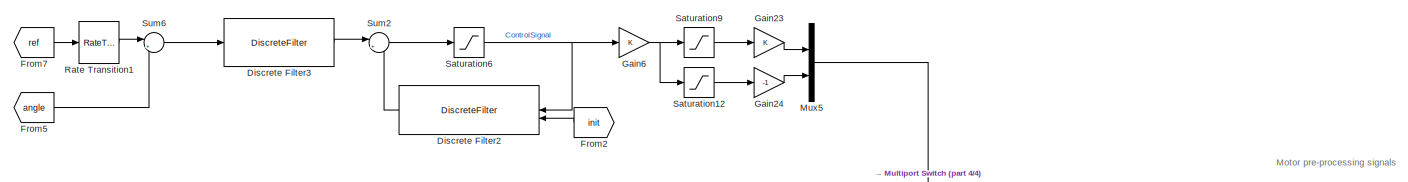
[diagram: root canvas - part 1/4, top center region]
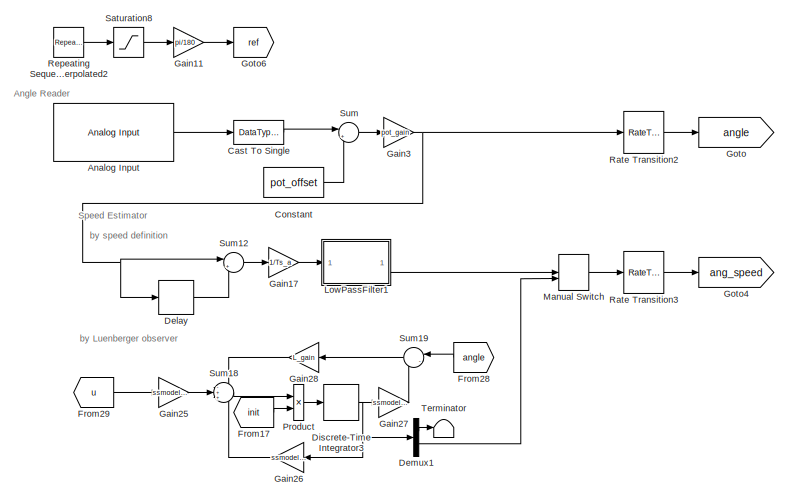
[diagram: root canvas - part 2/4, middle left region]
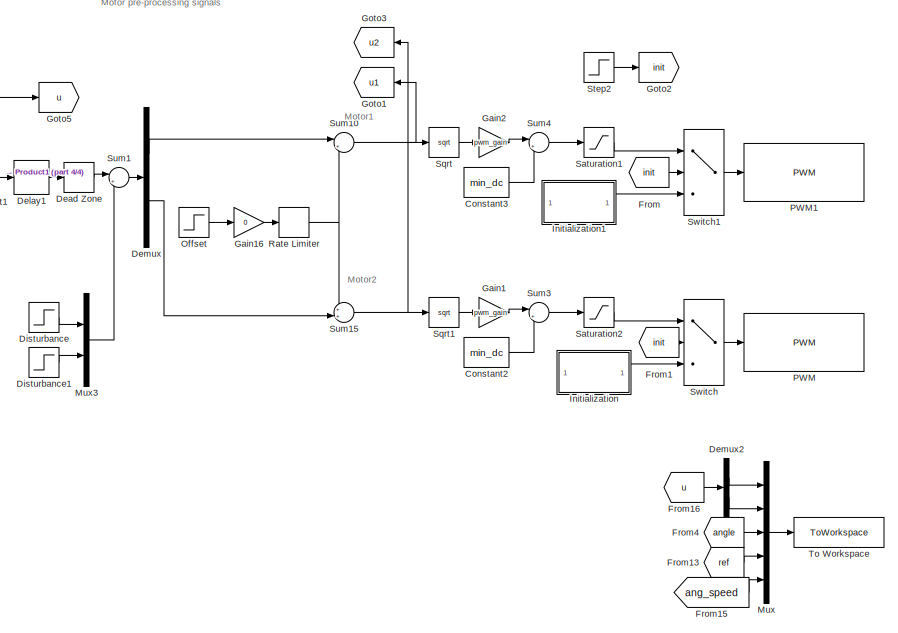
[diagram: root canvas - part 3/4, middle right region]
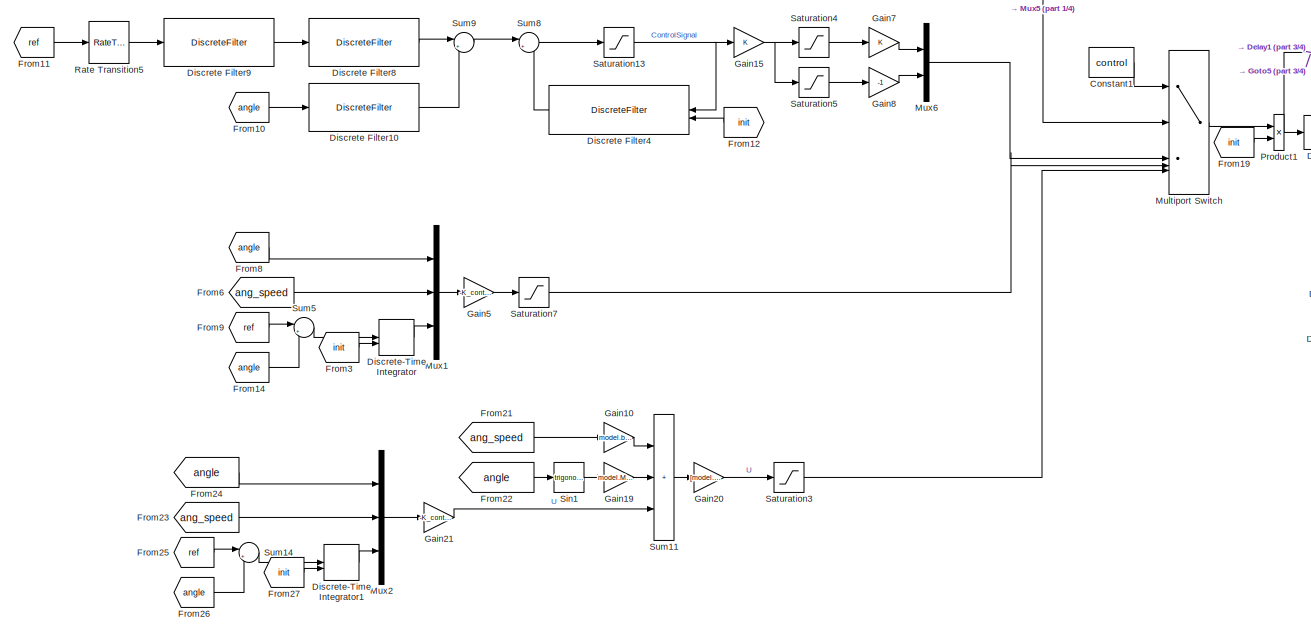
[diagram: root canvas - part 4/4, central region]
MODEL slx_61c2918c2355
KIND model
CONFIG AbsTol = auto
CONFIG EnableMultiTasking = on
CONFIG FixedStep = auto
CONFIG MaxStep = auto
CONFIG MinStep = auto
CONFIG RelTol = 1e-3
CONFIG SampleTimeConstraint = Unconstrained
CONFIG SolverName = FixedStepAuto
CONFIG StartTime = 0.0
CONFIG StopTime = 60
BLOCK [Reference] Analog Input  REF=arduinolib/Analog Input
  SourceBlock = arduinolib/Analog Input
  SourceType = Arduino Analog Input
BLOCK [DataTypeConversion] Cast To Single
  OutDataTypeStr = single
  RndMeth = Floor
  SaturateOnIntegerOverflow = off
BLOCK [Constant] Constant
  OutDataTypeStr = single
  SampleTime = Ts_a
  Value = pot_offset
BLOCK [Constant] Constant1
  SampleTime = Ts
  Value = control
BLOCK [Constant] Constant2
  OutDataTypeStr = single
  SampleTime = Ts
  Value = min_dc
BLOCK [Constant] Constant3
  OutDataTypeStr = single
  SampleTime = Ts
  Value = min_dc
BLOCK [DeadZone] Dead Zone
  Commented = through
  LowerValue = 0
  UpperValue = 0.1
BLOCK [Delay] Delay
  DelayLength = 1
  InputPortMap = u0
BLOCK [Delay] Delay1
  Commented = through
  InputPortMap = u0
BLOCK [Demux] Demux
  Outputs = 2
BLOCK [Demux] Demux1
  Outputs = 2
BLOCK [Demux] Demux2
  Outputs = 2
BLOCK [DiscreteFilter] Discrete Filter10
  Denominator = 1
  InputPortMap = u0
  Numerator = R
BLOCK [DiscreteFilter] Discrete Filter2
  Denominator = 1
  ExternalReset = Rising
  InputPortMap = u0,r7
  NameLocation = top
  Numerator = [1 0 0]-conv([1 s1_meq],[1 -1])
BLOCK [DiscreteFilter] Discrete Filter3
  Denominator = 1
  InputPortMap = u0
  Numerator = [r0_meq(1) r1_meq(1) r2_meq(1)]
BLOCK [DiscreteFilter] Discrete Filter4
  Denominator = 1
  ExternalReset = Rising
  InputPortMap = u0,r7
  NameLocation = top
  Numerator = [1 0 0]-conv([1 s1_meq],[1 -1])
BLOCK [DiscreteFilter] Discrete Filter8
  Denominator = 1
  InputPortMap = u0
  Numerator = T
BLOCK [DiscreteFilter] Discrete Filter9
  Denominator = den_mf_track
  InputPortMap = u0
  Numerator = num_mf_track
BLOCK [DiscreteIntegrator] Discrete-Time Integrator
  ExternalReset = rising
  ICPrevOutput = DiscIntNeverNeededParam
  ICPrevScaledInput = DiscIntNeverNeededParam
  InitialConditionSetting = Auto
  SampleTime = -1
BLOCK [DiscreteIntegrator] Discrete-Time Integrator1
  ExternalReset = rising
  ICPrevOutput = DiscIntNeverNeededParam
  ICPrevScaledInput = DiscIntNeverNeededParam
  InitialConditionSetting = Auto
  SampleTime = -1
BLOCK [DiscreteIntegrator] Discrete-Time Integrator3
  ICPrevOutput = DiscIntNeverNeededParam
  ICPrevScaledInput = DiscIntNeverNeededParam
  InitialConditionSetting = Auto
  SampleTime = -1
BLOCK [Step] Disturbance
  After = 0.04
  SampleTime = Ts
  Time = 5+15
BLOCK [Step] Disturbance1
  After = 0.04
  SampleTime = Ts
  Time = 20+15
BLOCK [From] From
  GotoTag = init
BLOCK [From] From1
  GotoTag = init
BLOCK [From] From10
  GotoTag = angle
BLOCK [From] From11
  GotoTag = ref
BLOCK [From] From12
  GotoTag = init
  NameLocation = top
BLOCK [From] From13
  GotoTag = ref
BLOCK [From] From14
  GotoTag = angle
BLOCK [From] From15
  GotoTag = ang_speed
BLOCK [From] From16
  GotoTag = u
BLOCK [From] From17
  GotoTag = init
BLOCK [From] From19
  GotoTag = init
BLOCK [From] From2
  GotoTag = init
  NameLocation = top
BLOCK [From] From21
  GotoTag = ang_speed
BLOCK [From] From22
  GotoTag = angle
BLOCK [From] From23
  GotoTag = ang_speed
BLOCK [From] From24
  GotoTag = angle
BLOCK [From] From25
  GotoTag = ref
BLOCK [From] From26
  GotoTag = angle
BLOCK [From] From27
  GotoTag = init
BLOCK [From] From28
  GotoTag = angle
  NameLocation = top
BLOCK [From] From29
  GotoTag = u
  NameLocation = top
BLOCK [From] From3
  GotoTag = init
BLOCK [From] From4
  GotoTag = angle
BLOCK [From] From5
  GotoTag = angle
BLOCK [From] From6
  GotoTag = ang_speed
BLOCK [From] From7
  GotoTag = ref
BLOCK [From] From8
  GotoTag = angle
BLOCK [From] From9
  GotoTag = ref
BLOCK [Gain] Gain1
  Gain = pwm_gain
  OutDataTypeStr = Inherit: Inherit via back propagation
  ParamDataTypeStr = single
BLOCK [Gain] Gain10
  Gain = model.b/model.J
BLOCK [Gain] Gain11
  Gain = pi/180
BLOCK [Gain] Gain15
BLOCK [Gain] Gain16
  Gain = 0
BLOCK [Gain] Gain17
  Gain = 1/Ts_a
BLOCK [Gain] Gain19
  Gain = model.M*model.g*model.x/model.J
BLOCK [Gain] Gain2
  Gain = pwm_gain
  OutDataTypeStr = single
BLOCK [Gain] Gain20
  Gain = [model.J/model.gain -model.J/model.gain]
BLOCK [Gain] Gain21
  Gain = -K_controller2
  Multiplication = Matrix(K*u)
BLOCK [Gain] Gain23
BLOCK [Gain] Gain24
  Gain = -1
BLOCK [Gain] Gain25
  Gain = ssmodel_B
  Multiplication = Matrix(K*u)
  OutDataTypeStr = single
BLOCK [Gain] Gain26
  Gain = ssmodel_A
  Multiplication = Matrix(K*u)
  NameLocation = top
BLOCK [Gain] Gain27
  Gain = ssmodel_C
  Multiplication = Matrix(K*u)
BLOCK [Gain] Gain28
  Gain = L_gain
  Multiplication = Matrix(K*u)
  NameLocation = top
BLOCK [Gain] Gain3
  Gain = pot_gain
  OutDataTypeStr = single
BLOCK [Gain] Gain5
  Gain = -K_controller
  Multiplication = Matrix(K*u)
BLOCK [Gain] Gain6
BLOCK [Gain] Gain7
BLOCK [Gain] Gain8
  Gain = -1
BLOCK [Goto] Goto
  GotoTag = angle
BLOCK [Goto] Goto1
  GotoTag = u1
  NameLocation = top
BLOCK [Goto] Goto2
  GotoTag = init
BLOCK [Goto] Goto3
  GotoTag = u2
  NameLocation = top
BLOCK [Goto] Goto4
  GotoTag = ang_speed
BLOCK [Goto] Goto5
  GotoTag = u
BLOCK [Goto] Goto6
  GotoTag = ref
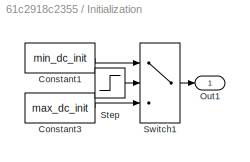
BLOCK [SubSystem] Initialization
BLOCK [Constant] Initialization/Constant1
  OutDataTypeStr = single
  SampleTime = Ts
  Value = min_dc_init
BLOCK [Constant] Initialization/Constant3
  OutDataTypeStr = single
  SampleTime = Ts
  Value = max_dc_init
BLOCK [Outport] Initialization/Out1
BLOCK [Step] Initialization/Step
  OutDataTypeStr = single
  SampleTime = Ts
  Time = 2
BLOCK [Switch] Initialization/Switch1
  Criteria = u2 > Threshold
  InputSameDT = off
  SaturateOnIntegerOverflow = off
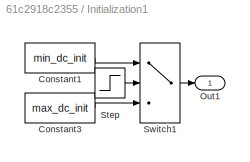
BLOCK [SubSystem] Initialization1
BLOCK [Constant] Initialization1/Constant1
  OutDataTypeStr = single
  SampleTime = Ts
  Value = min_dc_init
BLOCK [Constant] Initialization1/Constant3
  OutDataTypeStr = single
  SampleTime = Ts
  Value = max_dc_init
BLOCK [Outport] Initialization1/Out1
BLOCK [Step] Initialization1/Step
  OutDataTypeStr = single
  SampleTime = Ts
  Time = 2
BLOCK [Switch] Initialization1/Switch1
  Criteria = u2 > Threshold
  InputSameDT = off
  SaturateOnIntegerOverflow = off
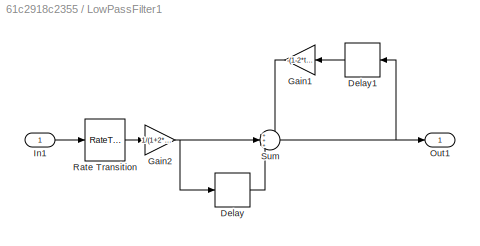
BLOCK [SubSystem] LowPassFilter1
  Commented = through
BLOCK [Delay] LowPassFilter1/Delay
  DelayLength = 1
  InputPortMap = u0
BLOCK [Delay] LowPassFilter1/Delay1
  DelayLength = 1
  InputPortMap = u0
  NameLocation = top
BLOCK [Gain] LowPassFilter1/Gain1
  Gain = -(1-2*tau/Ts)*1/(1+2*tau/Ts)
  NameLocation = top
  OutDataTypeStr = single
BLOCK [Gain] LowPassFilter1/Gain2
  Gain = 1/(1+2*tau/Ts)
  OutDataTypeStr = single
BLOCK [Inport] LowPassFilter1/In1
BLOCK [Outport] LowPassFilter1/Out1
BLOCK [RateTransition] LowPassFilter1/Rate Transition
  OutPortSampleTime = Ts
BLOCK [Sum] LowPassFilter1/Sum
  Inputs = +++
BLOCK [ManualSwitch] Manual Switch
  CurrentSetting = 0
BLOCK [MultiPortSwitch] Multiport Switch
  InputSameDT = off
  Inputs = 4
  SaturateOnIntegerOverflow = off
BLOCK [Mux] Mux
  DisplayOption = bar
  Inputs = 5
BLOCK [Mux] Mux1
  DisplayOption = bar
  Inputs = 3
BLOCK [Mux] Mux2
  DisplayOption = bar
  Inputs = 3
BLOCK [Mux] Mux3
  DisplayOption = bar
  Inputs = 2
BLOCK [Mux] Mux5
  DisplayOption = bar
  Inputs = 2
BLOCK [Mux] Mux6
  DisplayOption = bar
  Inputs = 2
BLOCK [Step] Offset
  After = 0.01
  OutDataTypeStr = single
  SampleTime = Ts
  Time = 15
BLOCK [Reference] PWM  REF=arduinolib/PWM
  SourceBlock = arduinolib/PWM
  SourceType = Arduino PWM
BLOCK [Reference] PWM1  REF=arduinolib/PWM
  SourceBlock = arduinolib/PWM
  SourceType = Arduino PWM
BLOCK [Product] Product
BLOCK [Product] Product1
BLOCK [RateLimiter] Rate Limiter
  SampleTimeMode = inherited
BLOCK [RateTransition] Rate Transition1
BLOCK [RateTransition] Rate Transition2
  OutPortSampleTime = Ts
BLOCK [RateTransition] Rate Transition3
  OutPortSampleTime = Ts
BLOCK [RateTransition] Rate Transition5
BLOCK [Reference] Repeating Sequence Interpolated2  REF=simulink/Sources/Repeating
Sequence
Interpolated
  SourceBlock = simulink/Sources/Repeating\nSequence\nInterpolated
  SourceType = Repeating Sequence Interpolated
BLOCK [Saturate] Saturation1
  LowerLimit = min_dc
  OutDataTypeStr = single
  UpperLimit = max_dc
BLOCK [Saturate] Saturation12
  LowerLimit = -1
  UpperLimit = 0
BLOCK [Saturate] Saturation13
  LowerLimit = -1
  UpperLimit = 1
BLOCK [Saturate] Saturation2
  LowerLimit = min_dc
  UpperLimit = max_dc
BLOCK [Saturate] Saturation3
  LowerLimit = 0
  UpperLimit = 1
BLOCK [Saturate] Saturation4
  LowerLimit = 0
  UpperLimit = 1
BLOCK [Saturate] Saturation5
  LowerLimit = -1
  UpperLimit = 0
BLOCK [Saturate] Saturation6
  LowerLimit = -1
  UpperLimit = 1
BLOCK [Saturate] Saturation7
  LowerLimit = 0
  UpperLimit = 1
BLOCK [Saturate] Saturation8
  LowerLimit = -140
  UpperLimit = 140
BLOCK [Saturate] Saturation9
  LowerLimit = 0
  UpperLimit = 1
BLOCK [Trigonometry] Sin1
BLOCK [Sqrt] Sqrt
  OutputSignalType = real
BLOCK [Sqrt] Sqrt1
  OutputSignalType = real
BLOCK [Step] Step2
  OutDataTypeStr = single
  SampleTime = Ts
  Time = 15
BLOCK [Sum] Sum
  Inputs = |+-
BLOCK [Sum] Sum1
  Inputs = |++
BLOCK [Sum] Sum10
  Inputs = |++
BLOCK [Sum] Sum11
  IconShape = rectangular
  Inputs = +++
BLOCK [Sum] Sum12
  Inputs = |+-
BLOCK [Sum] Sum14
  Inputs = |+-
BLOCK [Sum] Sum15
  Inputs = ++|
BLOCK [Sum] Sum18
  Inputs = -++
BLOCK [Sum] Sum19
  Inputs = |-+
  NameLocation = top
BLOCK [Sum] Sum2
  Inputs = |++
  OutDataTypeStr = single
BLOCK [Sum] Sum3
  Inputs = |++
  OutDataTypeStr = Inherit: Same as first input
BLOCK [Sum] Sum4
  Inputs = |++
  OutDataTypeStr = Inherit: Same as first input
BLOCK [Sum] Sum5
  Inputs = |+-
BLOCK [Sum] Sum6
  Inputs = |+-
BLOCK [Sum] Sum8
  Inputs = |++
  OutDataTypeStr = single
BLOCK [Sum] Sum9
  Inputs = |+-
  OutDataTypeStr = Inherit: Inherit via back propagation
BLOCK [Switch] Switch
  Criteria = u2 > Threshold
  InputSameDT = off
  SaturateOnIntegerOverflow = off
BLOCK [Switch] Switch1
  Criteria = u2 > Threshold
  InputSameDT = off
  SaturateOnIntegerOverflow = off
BLOCK [Terminator] Terminator
BLOCK [ToWorkspace] To Workspace
  FixptAsFi = on
  MaxDataPoints = inf
  SampleTime = Ts
  SaveFormat = Structure With Time
  VariableName = Ensaio1
ANNOTATION (root): Angle Reader
ANNOTATION (root): Motor pre-processing signals
ANNOTATION (root): Motor1
ANNOTATION (root): Motor2
ANNOTATION (root): Speed Estimator
ANNOTATION (root): by Luenberger observer
ANNOTATION (root): by speed definition
LINE Analog Input:1 -> Cast To Single:1
LINE Cast To Single:1 -> Sum:1
LINE Constant1:1 -> Multiport Switch:1
LINE Constant2:1 -> Sum3:2
LINE Constant3:1 -> Sum4:2
LINE Constant:1 -> Sum:2
LINE Dead Zone:1 -> Sum1:1
LINE Delay1:1 -> Dead Zone:1
LINE Delay:1 -> Sum12:2
LINE Demux1:1 -> Terminator:1
LINE Demux1:2 -> Manual Switch:2
LINE Demux2:1 -> Mux:1
LINE Demux2:2 -> Mux:2
LINE Demux:1 -> Sum10:1
LINE Demux:2 -> Sum15:2
LINE Discrete Filter10:1 -> Sum9:2
LINE Discrete Filter2:1 -> Sum2:2
LINE Discrete Filter3:1 -> Sum2:1
LINE Discrete Filter4:1 -> Sum8:2
LINE Discrete Filter8:1 -> Sum9:1
LINE Discrete Filter9:1 -> Discrete Filter8:1
LINE Discrete-Time Integrator1:1 -> Mux2:3
NET Discrete-Time Integrator3:1 -> Demux1:1, Gain26:1, Gain27:1
LINE Discrete-Time Integrator:1 -> Mux1:3
LINE Disturbance1:1 -> Mux3:2
LINE Disturbance:1 -> Mux3:1
LINE From10:1 -> Discrete Filter10:1
LINE From11:1 -> Rate Transition5:1
LINE From12:1 -> Discrete Filter4:2
LINE From13:1 -> Mux:4
LINE From14:1 -> Sum5:2
LINE From15:1 -> Mux:5
LINE From16:1 -> Demux2:1
LINE From17:1 -> Product:2
LINE From19:1 -> Product1:2
LINE From1:1 -> Switch:2
LINE From21:1 -> Gain10:1
LINE From22:1 -> Sin1:1
LINE From23:1 -> Mux2:2
LINE From24:1 -> Mux2:1
LINE From25:1 -> Sum14:1
LINE From26:1 -> Sum14:2
LINE From27:1 -> Discrete-Time Integrator1:2
LINE From28:1 -> Sum19:1
LINE From29:1 -> Gain25:1
LINE From2:1 -> Discrete Filter2:2
LINE From3:1 -> Discrete-Time Integrator:2
LINE From4:1 -> Mux:3
LINE From5:1 -> Sum6:2
LINE From6:1 -> Mux1:2
LINE From7:1 -> Rate Transition1:1
LINE From8:1 -> Mux1:1
LINE From9:1 -> Sum5:1
LINE From:1 -> Switch1:2
LINE Gain10:1 -> Sum11:1
LINE Gain11:1 -> Goto6:1
NET Gain15:1 -> Saturation4:1, Saturation5:1
LINE Gain16:1 -> Rate Limiter:1
LINE Gain17:1 -> LowPassFilter1:1
LINE Gain19:1 -> Sum11:2
LINE Gain1:1 -> Sum3:1
LINE Gain20:1 -> Saturation3:1
LINE Gain21:1 -> Sum11:3
LINE Gain23:1 -> Mux5:1
LINE Gain24:1 -> Mux5:2
LINE Gain25:1 -> Sum18:2
LINE Gain26:1 -> Sum18:3
LINE Gain27:1 -> Sum19:2
LINE Gain28:1 -> Sum18:1
LINE Gain2:1 -> Sum4:1
NET Gain3:1 -> Delay:1, Rate Transition2:1, Sum12:1
LINE Gain5:1 -> Saturation7:1
NET Gain6:1 -> Saturation12:1, Saturation9:1
LINE Gain7:1 -> Mux6:1
LINE Gain8:1 -> Mux6:2
LINE Initialization/Constant1:1 -> Initialization/Switch1:1
LINE Initialization/Constant3:1 -> Initialization/Switch1:3
LINE Initialization/Step:1 -> Initialization/Switch1:2
LINE Initialization/Switch1:1 -> Initialization/Out1:1
LINE Initialization1/Constant1:1 -> Initialization1/Switch1:1
LINE Initialization1/Constant3:1 -> Initialization1/Switch1:3
LINE Initialization1/Step:1 -> Initialization1/Switch1:2
LINE Initialization1/Switch1:1 -> Initialization1/Out1:1
LINE Initialization1:1 -> Switch1:3
LINE Initialization:1 -> Switch:3
LINE LowPassFilter1/Delay1:1 -> LowPassFilter1/Gain1:1
LINE LowPassFilter1/Delay:1 -> LowPassFilter1/Sum:3
LINE LowPassFilter1/Gain1:1 -> LowPassFilter1/Sum:1
NET LowPassFilter1/Gain2:1 -> LowPassFilter1/Delay:1, LowPassFilter1/Sum:2
LINE LowPassFilter1/In1:1 -> LowPassFilter1/Rate Transition:1
LINE LowPassFilter1/Rate Transition:1 -> LowPassFilter1/Gain2:1
NET LowPassFilter1/Sum:1 -> LowPassFilter1/Delay1:1, LowPassFilter1/Out1:1
LINE LowPassFilter1:1 -> Manual Switch:1
LINE Manual Switch:1 -> Rate Transition3:1
LINE Multiport Switch:1 -> Product1:1
LINE Mux1:1 -> Gain5:1
LINE Mux2:1 -> Gain21:1
LINE Mux3:1 -> Sum1:2
LINE Mux5:1 -> Multiport Switch:2
LINE Mux6:1 -> Multiport Switch:3
LINE Mux:1 -> To Workspace:1
LINE Offset:1 -> Gain16:1
NET Product1:1 -> Delay1:1, Goto5:1
LINE Product:1 -> Discrete-Time Integrator3:1
NET Rate Limiter:1 -> Sum10:2, Sum15:1
LINE Rate Transition1:1 -> Sum6:1
LINE Rate Transition2:1 -> Goto:1
LINE Rate Transition3:1 -> Goto4:1
LINE Rate Transition5:1 -> Discrete Filter9:1
LINE Repeating Sequence Interpolated2:1 -> Saturation8:1
LINE Saturation12:1 -> Gain24:1
NET Saturation13:1 -> Discrete Filter4:1, Gain15:1
LINE Saturation1:1 -> Switch1:1
LINE Saturation2:1 -> Switch:1
LINE Saturation3:1 -> Multiport Switch:5
LINE Saturation4:1 -> Gain7:1
LINE Saturation5:1 -> Gain8:1
NET Saturation6:1 -> Discrete Filter2:1, Gain6:1
LINE Saturation7:1 -> Multiport Switch:4
LINE Saturation8:1 -> Gain11:1
LINE Saturation9:1 -> Gain23:1
LINE Sin1:1 -> Gain19:1
LINE Sqrt1:1 -> Gain1:1
LINE Sqrt:1 -> Gain2:1
LINE Step2:1 -> Goto2:1
NET Sum10:1 -> Goto1:1, Sqrt:1
LINE Sum11:1 -> Gain20:1
LINE Sum12:1 -> Gain17:1
LINE Sum14:1 -> Discrete-Time Integrator1:1
NET Sum15:1 -> Goto3:1, Sqrt1:1
LINE Sum18:1 -> Product:1
LINE Sum19:1 -> Gain28:1
LINE Sum1:1 -> Demux:1
LINE Sum2:1 -> Saturation6:1
LINE Sum3:1 -> Saturation2:1
LINE Sum4:1 -> Saturation1:1
LINE Sum5:1 -> Discrete-Time Integrator:1
LINE Sum6:1 -> Discrete Filter3:1
LINE Sum8:1 -> Saturation13:1
LINE Sum9:1 -> Sum8:1
LINE Sum:1 -> Gain3:1
LINE Switch1:1 -> PWM1:1
LINE Switch:1 -> PWM:1
note: NET lines group one-source signal fan-out (src -> all destinations, sorted); 1:1 wires keep LINE
